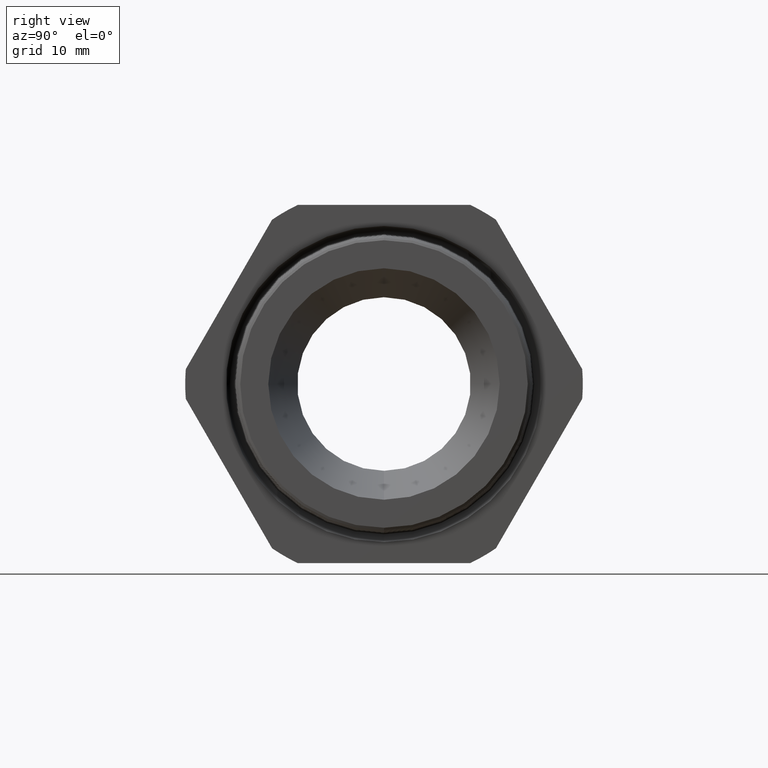
[diagram: clean part render]
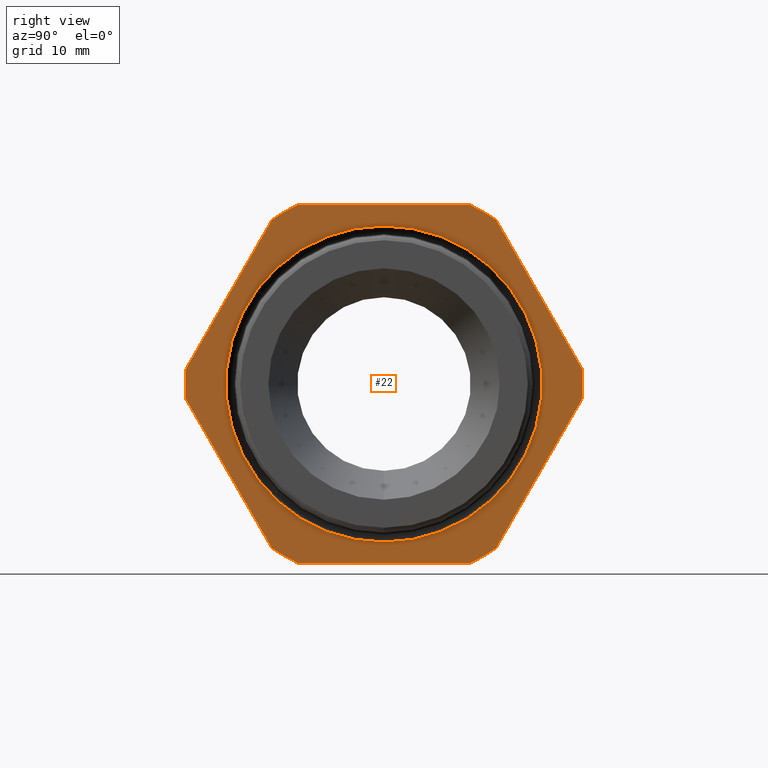
[diagram: same view with one face highlighted and labeled with its STEP entity id]
A machine part, right view. The second image highlights one B-rep face of the part: STEP entity #22.
In plain terms, the highlighted planar face has unit normal (1, 0, 0).
Its self-contained STEP definition (entity closure, byte-faithful):
#15 = ORIENTED_EDGE ( 'NONE', *, *, #287, .T. ) ;
#16 = EDGE_LOOP ( 'NONE', ( #15, #284, #33, #34, #37, #28, #279, #281, #293, #290, #286, #327 ) ) ;
#22 = ADVANCED_FACE ( 'NONE', ( #1207, #1206 ), #1205, .T. ) ;
#24 = VERTEX_POINT ( 'NONE', #1259 ) ;
#26 = VERTEX_POINT ( 'NONE', #1252 ) ;
#28 = ORIENTED_EDGE ( 'NONE', *, *, #298, .T. ) ;
#30 = VERTEX_POINT ( 'NONE', #1247 ) ;
#31 = VERTEX_POINT ( 'NONE', #1246 ) ;
#32 = EDGE_CURVE ( 'NONE', #31, #30, #1245, .T. ) ;
#33 = ORIENTED_EDGE ( 'NONE', *, *, #35, .T. ) ;
#34 = ORIENTED_EDGE ( 'NONE', *, *, #32, .T. ) ;
#35 = EDGE_CURVE ( 'NONE', #26, #31, #1240, .T. ) ;
#36 = EDGE_CURVE ( 'NONE', #30, #24, #1298, .T. ) ;
#37 = ORIENTED_EDGE ( 'NONE', *, *, #36, .T. ) ;
#44 = VERTEX_POINT ( 'NONE', #1284 ) ;
#58 = EDGE_CURVE ( 'NONE', #71, #44, #1318, .T. ) ;
#71 = VERTEX_POINT ( 'NONE', #1353 ) ;
#275 = VERTEX_POINT ( 'NONE', #1765 ) ;
#276 = VERTEX_POINT ( 'NONE', #1764 ) ;
#277 = VERTEX_POINT ( 'NONE', #1763 ) ;
#278 = VERTEX_POINT ( 'NONE', #1762 ) ;
#279 = ORIENTED_EDGE ( 'NONE', *, *, #296, .T. ) ;
#280 = VERTEX_POINT ( 'NONE', #1761 ) ;
#281 = ORIENTED_EDGE ( 'NONE', *, *, #295, .T. ) ;
#282 = VERTEX_POINT ( 'NONE', #1760 ) ;
#283 = VERTEX_POINT ( 'NONE', #1759 ) ;
#284 = ORIENTED_EDGE ( 'NONE', *, *, #285, .T. ) ;
#285 = EDGE_CURVE ( 'NONE', #283, #26, #1758, .T. ) ;
#286 = ORIENTED_EDGE ( 'NONE', *, *, #337, .T. ) ;
#287 = EDGE_CURVE ( 'NONE', #275, #283, #1753, .T. ) ;
#290 = ORIENTED_EDGE ( 'NONE', *, *, #291, .T. ) ;
#291 = EDGE_CURVE ( 'NONE', #277, #276, #1749, .T. ) ;
#292 = EDGE_CURVE ( 'NONE', #282, #277, #1744, .T. ) ;
#293 = ORIENTED_EDGE ( 'NONE', *, *, #292, .T. ) ;
#294 = EDGE_LOOP ( 'NONE', ( #317, #316 ) ) ;
#295 = EDGE_CURVE ( 'NONE', #280, #282, #1740, .T. ) ;
#296 = EDGE_CURVE ( 'NONE', #278, #280, #1795, .T. ) ;
#298 = EDGE_CURVE ( 'NONE', #24, #278, #1791, .T. ) ;
#315 = EDGE_CURVE ( 'NONE', #44, #71, #1800, .T. ) ;
#316 = ORIENTED_EDGE ( 'NONE', *, *, #315, .T. ) ;
#317 = ORIENTED_EDGE ( 'NONE', *, *, #58, .T. ) ;
#327 = ORIENTED_EDGE ( 'NONE', *, *, #338, .T. ) ;
#329 = VERTEX_POINT ( 'NONE', #1837 ) ;
#337 = EDGE_CURVE ( 'NONE', #276, #329, #1888, .T. ) ;
#338 = EDGE_CURVE ( 'NONE', #329, #275, #1884, .T. ) ;
#1205 = PLANE ( 'NONE',  #1267 ) ;
#1206 = FACE_BOUND ( 'NONE', #294, .T. ) ;
#1207 = FACE_OUTER_BOUND ( 'NONE', #16, .T. ) ;
#1237 = DIRECTION ( 'NONE',  ( 0.0000000000000000000, -0.5000000000000002200, 0.8660254037844384900 ) ) ;
#1238 = VECTOR ( 'NONE', #1237, 39.37007874015748900 ) ;
#1239 = CARTESIAN_POINT ( 'NONE',  ( -0.3100000000000000000, 0.8879165124598854500, -0.2379165124598851300 ) ) ;
#1240 = LINE ( 'NONE', #1239, #1238 ) ;
#1241 = DIRECTION ( 'NONE',  ( 0.0000000000000000000, 0.0000000000000000000, -1.000000000000000000 ) ) ;
#1242 = DIRECTION ( 'NONE',  ( 1.000000000000000000, 0.0000000000000000000, 0.0000000000000000000 ) ) ;
#1243 = CARTESIAN_POINT ( 'NONE',  ( -0.3100000000000000000, 0.0000000000000000000, 0.0000000000000000000 ) ) ;
#1244 = AXIS2_PLACEMENT_3D ( 'NONE', #1243, #1242, #1241 ) ;
#1245 = CIRCLE ( 'NONE', #1244, 0.7215000000000000300 ) ;
#1246 = CARTESIAN_POINT ( 'NONE',  ( -0.3100000000000000000, 0.4063420493440883000, 0.5961949252843793400 ) ) ;
#1247 = CARTESIAN_POINT ( 'NONE',  ( -0.3100000000000000000, 0.3131489262315935700, 0.6500000000000000200 ) ) ;
#1252 = CARTESIAN_POINT ( 'NONE',  ( -0.3100000000000000000, 0.7194909755756819800, 0.05380507471562106400 ) ) ;
#1259 = CARTESIAN_POINT ( 'NONE',  ( -0.3100000000000000000, -0.3131489262315937400, 0.6500000000000000200 ) ) ;
#1264 = DIRECTION ( 'NONE',  ( 0.0000000000000000000, 0.0000000000000000000, -1.000000000000000000 ) ) ;
#1265 = DIRECTION ( 'NONE',  ( 1.000000000000000000, 0.0000000000000000000, 0.0000000000000000000 ) ) ;
#1266 = CARTESIAN_POINT ( 'NONE',  ( -0.3100000000000000000, 1.300000000000000000, 0.0000000000000000000 ) ) ;
#1267 = AXIS2_PLACEMENT_3D ( 'NONE', #1266, #1265, #1264 ) ;
#1284 = CARTESIAN_POINT ( 'NONE',  ( -0.3100000000000000000, 7.024320156216735800E-017, 0.5735792688232509400 ) ) ;
#1295 = DIRECTION ( 'NONE',  ( 0.0000000000000000000, -1.000000000000000000, 0.0000000000000000000 ) ) ;
#1296 = VECTOR ( 'NONE', #1295, 39.37007874015748100 ) ;
#1297 = CARTESIAN_POINT ( 'NONE',  ( -0.3100000000000000000, 1.300000000000000000, 0.6500000000000000200 ) ) ;
#1298 = LINE ( 'NONE', #1297, #1296 ) ;
#1315 = DIRECTION ( 'NONE',  ( 0.0000000000000000000, 0.0000000000000000000, -1.000000000000000000 ) ) ;
#1316 = DIRECTION ( 'NONE',  ( -1.000000000000000000, 0.0000000000000000000, 0.0000000000000000000 ) ) ;
#1317 = AXIS2_PLACEMENT_3D ( 'NONE', #1323, #1316, #1315 ) ;
#1318 = CIRCLE ( 'NONE', #1317, 0.5735792688232509400 ) ;
#1323 = CARTESIAN_POINT ( 'NONE',  ( -0.3100000000000000000, 0.0000000000000000000, 0.0000000000000000000 ) ) ;
#1353 = CARTESIAN_POINT ( 'NONE',  ( -0.3100000000000000000, 0.0000000000000000000, -0.5735792688232509400 ) ) ;
#1738 = CARTESIAN_POINT ( 'NONE',  ( -0.3100000000000000000, 0.0000000000000000000, 0.0000000000000000000 ) ) ;
#1739 = AXIS2_PLACEMENT_3D ( 'NONE', #1738, #1797, #1796 ) ;
#1740 = CIRCLE ( 'NONE', #1739, 0.7215000000000000300 ) ;
#1741 = DIRECTION ( 'NONE',  ( 0.0000000000000000000, 0.5000000000000000000, -0.8660254037844386000 ) ) ;
#1742 = VECTOR ( 'NONE', #1741, 39.37007874015748100 ) ;
#1743 = CARTESIAN_POINT ( 'NONE',  ( -0.3100000000000000000, -0.2379165124598855400, -0.8879165124598853400 ) ) ;
#1744 = LINE ( 'NONE', #1743, #1742 ) ;
#1745 = DIRECTION ( 'NONE',  ( 0.0000000000000000000, 0.0000000000000000000, -1.000000000000000000 ) ) ;
#1746 = DIRECTION ( 'NONE',  ( 1.000000000000000000, 0.0000000000000000000, 0.0000000000000000000 ) ) ;
#1747 = CARTESIAN_POINT ( 'NONE',  ( -0.3100000000000000000, 0.0000000000000000000, 0.0000000000000000000 ) ) ;
#1748 = AXIS2_PLACEMENT_3D ( 'NONE', #1747, #1746, #1745 ) ;
#1749 = CIRCLE ( 'NONE', #1748, 0.7215000000000000300 ) ;
#1750 = DIRECTION ( 'NONE',  ( 0.0000000000000000000, 0.4999999999999997200, 0.8660254037844388200 ) ) ;
#1751 = VECTOR ( 'NONE', #1750, 39.37007874015748900 ) ;
#1752 = CARTESIAN_POINT ( 'NONE',  ( -0.3100000000000000000, 0.8879165124598849000, 0.2379165124598851300 ) ) ;
#1753 = LINE ( 'NONE', #1752, #1751 ) ;
#1754 = DIRECTION ( 'NONE',  ( 0.0000000000000000000, 0.0000000000000000000, -1.000000000000000000 ) ) ;
#1755 = DIRECTION ( 'NONE',  ( 1.000000000000000000, 0.0000000000000000000, 0.0000000000000000000 ) ) ;
#1756 = CARTESIAN_POINT ( 'NONE',  ( -0.3100000000000000000, 0.0000000000000000000, 0.0000000000000000000 ) ) ;
#1757 = AXIS2_PLACEMENT_3D ( 'NONE', #1756, #1755, #1754 ) ;
#1758 = CIRCLE ( 'NONE', #1757, 0.7215000000000000300 ) ;
#1759 = CARTESIAN_POINT ( 'NONE',  ( -0.3100000000000000000, 0.7194909755756818700, -0.05380507471562060600 ) ) ;
#1760 = CARTESIAN_POINT ( 'NONE',  ( -0.3100000000000000000, -0.7194909755756818700, -0.05380507471562150100 ) ) ;
#1761 = CARTESIAN_POINT ( 'NONE',  ( -0.3100000000000000000, -0.7194909755756819800, 0.05380507471562089000 ) ) ;
#1762 = CARTESIAN_POINT ( 'NONE',  ( -0.3100000000000000000, -0.4063420493440887400, 0.5961949252843790100 ) ) ;
#1763 = CARTESIAN_POINT ( 'NONE',  ( -0.3100000000000000000, -0.4063420493440886300, -0.5961949252843790100 ) ) ;
#1764 = CARTESIAN_POINT ( 'NONE',  ( -0.3100000000000000000, -0.3131489262315936800, -0.6500000000000000200 ) ) ;
#1765 = CARTESIAN_POINT ( 'NONE',  ( -0.3100000000000000000, 0.4063420493440886800, -0.5961949252843789000 ) ) ;
#1787 = DIRECTION ( 'NONE',  ( 0.0000000000000000000, 0.0000000000000000000, -1.000000000000000000 ) ) ;
#1788 = DIRECTION ( 'NONE',  ( 1.000000000000000000, 0.0000000000000000000, 0.0000000000000000000 ) ) ;
#1789 = CARTESIAN_POINT ( 'NONE',  ( -0.3100000000000000000, 0.0000000000000000000, 0.0000000000000000000 ) ) ;
#1790 = AXIS2_PLACEMENT_3D ( 'NONE', #1789, #1788, #1787 ) ;
#1791 = CIRCLE ( 'NONE', #1790, 0.7215000000000000300 ) ;
#1792 = DIRECTION ( 'NONE',  ( 0.0000000000000000000, -0.4999999999999997200, -0.8660254037844388200 ) ) ;
#1793 = VECTOR ( 'NONE', #1792, 39.37007874015748900 ) ;
#1794 = CARTESIAN_POINT ( 'NONE',  ( -0.3100000000000000000, -0.2379165124598858200, 0.8879165124598850100 ) ) ;
#1795 = LINE ( 'NONE', #1794, #1793 ) ;
#1796 = DIRECTION ( 'NONE',  ( 0.0000000000000000000, 0.0000000000000000000, -1.000000000000000000 ) ) ;
#1797 = DIRECTION ( 'NONE',  ( 1.000000000000000000, 0.0000000000000000000, 0.0000000000000000000 ) ) ;
#1800 = CIRCLE ( 'NONE', #1857, 0.5735792688232509400 ) ;
#1837 = CARTESIAN_POINT ( 'NONE',  ( -0.3100000000000000000, 0.3131489262315935700, -0.6499999999999999100 ) ) ;
#1854 = DIRECTION ( 'NONE',  ( 0.0000000000000000000, 0.0000000000000000000, -1.000000000000000000 ) ) ;
#1855 = DIRECTION ( 'NONE',  ( -1.000000000000000000, 0.0000000000000000000, 0.0000000000000000000 ) ) ;
#1856 = CARTESIAN_POINT ( 'NONE',  ( -0.3100000000000000000, 0.0000000000000000000, 0.0000000000000000000 ) ) ;
#1857 = AXIS2_PLACEMENT_3D ( 'NONE', #1856, #1855, #1854 ) ;
#1880 = DIRECTION ( 'NONE',  ( 0.0000000000000000000, 0.0000000000000000000, -1.000000000000000000 ) ) ;
#1881 = DIRECTION ( 'NONE',  ( 1.000000000000000000, 0.0000000000000000000, 0.0000000000000000000 ) ) ;
#1882 = CARTESIAN_POINT ( 'NONE',  ( -0.3100000000000000000, 0.0000000000000000000, 0.0000000000000000000 ) ) ;
#1883 = AXIS2_PLACEMENT_3D ( 'NONE', #1882, #1881, #1880 ) ;
#1884 = CIRCLE ( 'NONE', #1883, 0.7214999999999999200 ) ;
#1885 = DIRECTION ( 'NONE',  ( 0.0000000000000000000, 1.000000000000000000, 0.0000000000000000000 ) ) ;
#1886 = VECTOR ( 'NONE', #1885, 39.37007874015748100 ) ;
#1887 = CARTESIAN_POINT ( 'NONE',  ( -0.3100000000000000000, 1.300000000000000000, -0.6500000000000000200 ) ) ;
#1888 = LINE ( 'NONE', #1887, #1886 ) ;